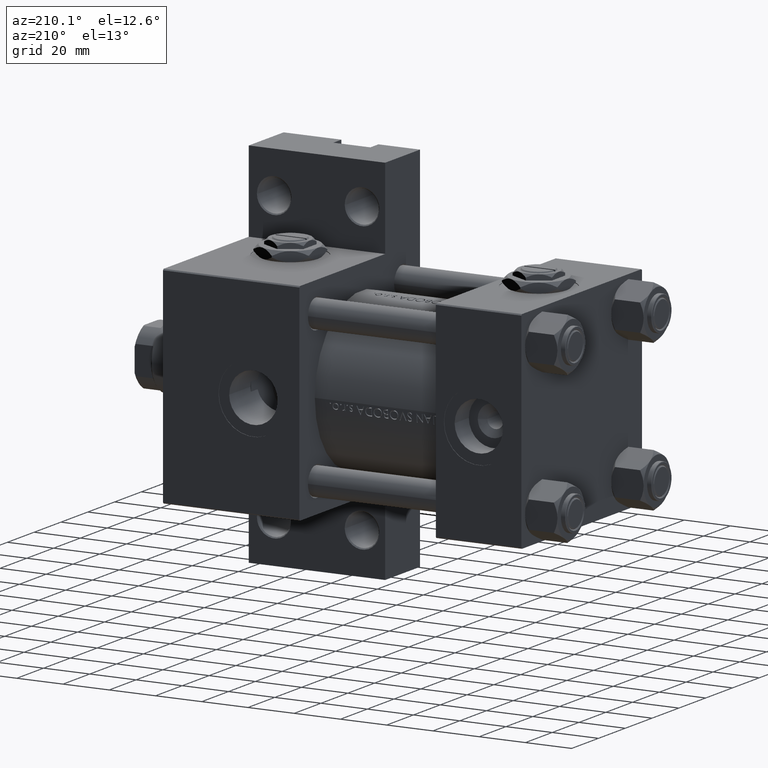
[diagram: clean part render]
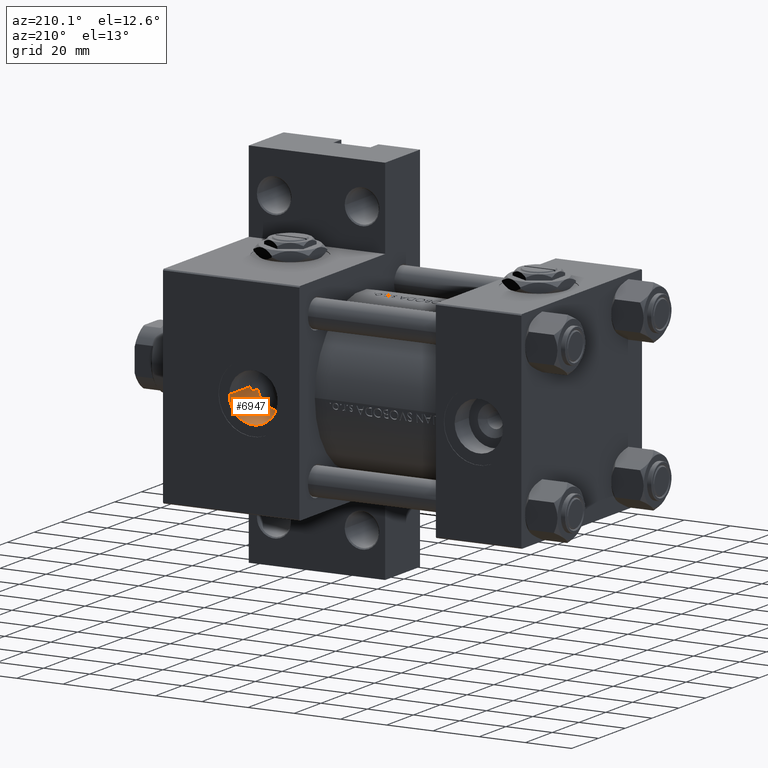
[diagram: same view with one face highlighted and labeled with its STEP entity id]
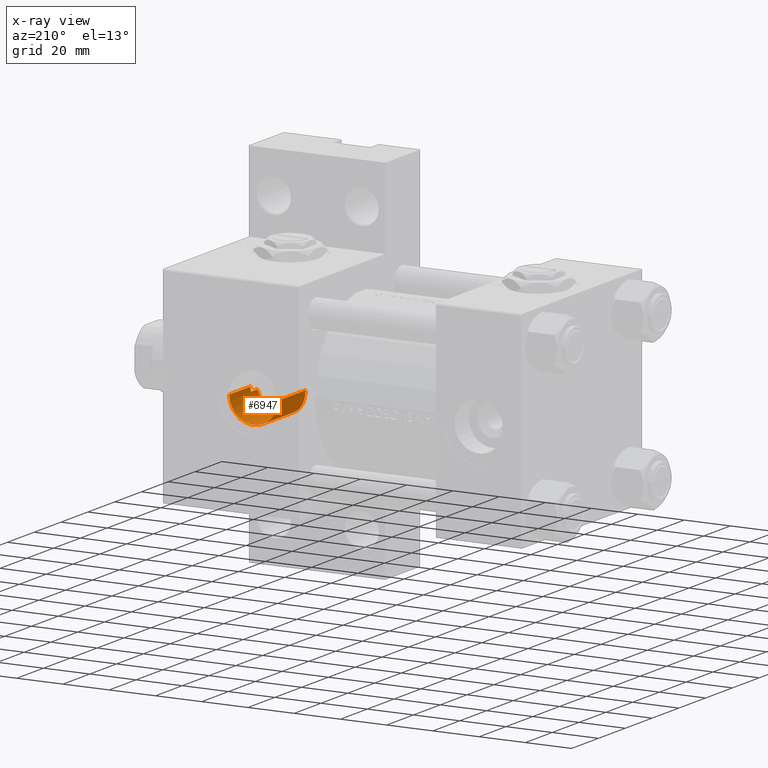
[diagram: x-ray of the same camera — body ghosted, the highlighted face saturated]
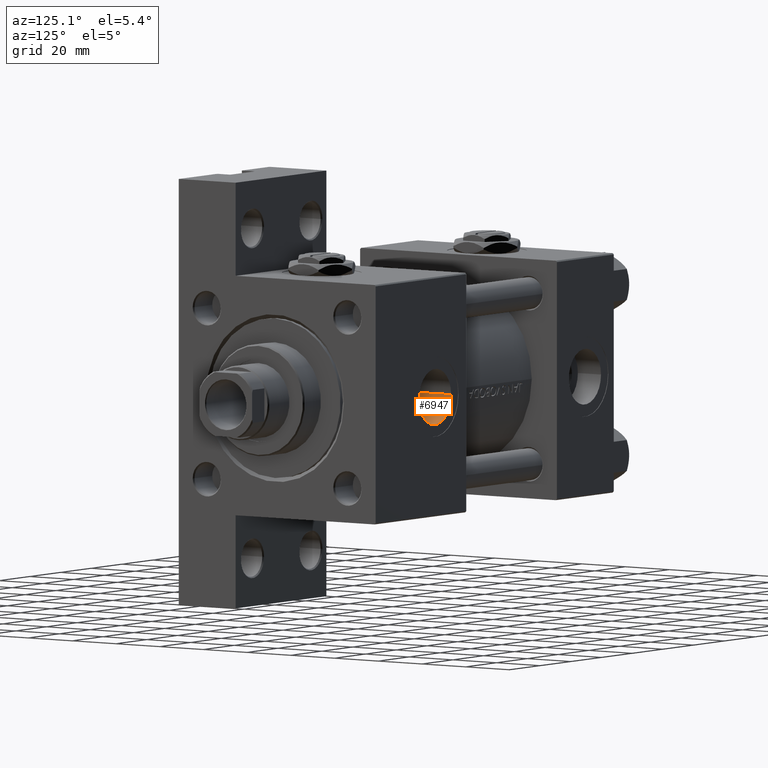
[diagram: same view with one face highlighted and labeled with its STEP entity id]
A machine part, auxiliary view. The second image highlights one B-rep face of the part: STEP entity #6947.
The next image is the same camera in x-ray: the body ghosted, the highlighted face saturated — about 0% of this face is hidden behind the body in this view.
A second angle (auxiliary view) of the same face is appended — the face is thin or edge-on in the first view.
In plain terms, the highlighted cylindrical surface (edge-blend (fillet) strip) has radius 10.48 mm, axis along (0, 1, 0).
Its self-contained STEP definition (entity closure, byte-faithful):
#535 = EDGE_LOOP ( 'NONE', ( #1357, #8630, #17877, #27736, #49111, #43908 ) ) ;
#1357 = ORIENTED_EDGE ( 'NONE', *, *, #39323, .F. ) ;
#1877 = CARTESIAN_POINT ( 'NONE',  ( 115.3546047890858830, 10.46516069043766706, 21.70421781554147955 ) ) ;
#2750 = CARTESIAN_POINT ( 'NONE',  ( 124.5605886890354128, 6.079608507556183206, 23.25599010009744205 ) ) ;
#3487 = CARTESIAN_POINT ( 'NONE',  ( 125.6486676934356410, 4.103318642504079961, 23.66282370660225709 ) ) ;
#3735 = CARTESIAN_POINT ( 'NONE',  ( 125.0706658558967348, 5.259006608444876996, 23.44220782432771344 ) ) ;
#3977 = CARTESIAN_POINT ( 'NONE',  ( 111.8833764951161385, 9.658986692485459713, 22.06079053540467783 ) ) ;
#4340 = CARTESIAN_POINT ( 'NONE',  ( 126.2999999999999972, 1.934011375354389939, 28.93759509379468398 ) ) ;
#5402 = CARTESIAN_POINT ( 'NONE',  ( 116.3365788557131282, 10.47972957537890615, 21.69747272524822179 ) ) ;
#5639 = CARTESIAN_POINT ( 'NONE',  ( 105.5814376118526923, 1.305463397218011412, 23.97406791321482089 ) ) ;
#6499 = EDGE_CURVE ( 'NONE', #42985, #9128, #26406, .T. ) ;
#6947 = ADVANCED_FACE ( 'NONE', ( #27909 ), #20364, .F. ) ;
#7760 = CIRCLE ( 'NONE', #35049, 10.48000000000000398 ) ;
#8630 = ORIENTED_EDGE ( 'NONE', *, *, #32320, .F. ) ;
#8645 = CARTESIAN_POINT ( 'NONE',  ( 106.1217545085731473, 3.515057092907707847, 23.75353681254874871 ) ) ;
#9071 = VECTOR ( 'NONE', #39358, 1000.000000000000000 ) ;
#9128 = VERTEX_POINT ( 'NONE', #4340 ) ;
#9887 = VERTEX_POINT ( 'NONE', #46737 ) ;
#10098 = CARTESIAN_POINT ( 'NONE',  ( 126.4800000000000040, 3.352779466116923030E-15, 28.99999999999999645 ) ) ;
#11239 = CARTESIAN_POINT ( 'NONE',  ( 125.9991245639265571, 3.203491301090188426, 23.80133124941671596 ) ) ;
#11529 = VERTEX_POINT ( 'NONE', #37274 ) ;
#11749 = CARTESIAN_POINT ( 'NONE',  ( 120.1231419626887202, 9.640330340006586951, 22.06687293500594649 ) ) ;
#12662 = CARTESIAN_POINT ( 'NONE',  ( 110.7417737867749139, 9.071127878233115283, 22.29694815791200213 ) ) ;
#13161 = CARTESIAN_POINT ( 'NONE',  ( 116.6678097429676200, 10.46380816682963300, 21.70484267188756888 ) ) ;
#13405 = CARTESIAN_POINT ( 'NONE',  ( 111.0221739552387561, 9.227930489537724768, 22.23508811885841396 ) ) ;
#14272 = CARTESIAN_POINT ( 'NONE',  ( 121.2804615657551750, 9.075224083592468460, 22.29671858359551706 ) ) ;
#14657 = EDGE_CURVE ( 'NONE', #9887, #11529, #7760, .T. ) ;
#15522 = CARTESIAN_POINT ( 'NONE',  ( 114.3833313512579792, 10.37495424086225171, 21.74565242126386266 ) ) ;
#15835 = DIRECTION ( 'NONE',  ( -0.000000000000000000, -0.000000000000000000, 1.000000000000000000 ) ) ;
#16681 = CARTESIAN_POINT ( 'NONE',  ( 115.6804775589005061, 10.48026348470391511, 21.69722620448674988 ) ) ;
#16936 = CARTESIAN_POINT ( 'NONE',  ( 105.8365460779989462, 2.576987839526246216, 23.86882874518433795 ) ) ;
#17022 = CARTESIAN_POINT ( 'NONE',  ( 126.2999999999999972, 1.934011375354389717, -29.64191626734007201 ) ) ;
#17103 = DIRECTION ( 'NONE',  ( 0.000000000000000000, 0.000000000000000000, 1.000000000000000000 ) ) ;
#17184 = CARTESIAN_POINT ( 'NONE',  ( 107.8404148361185548, 6.584472189995012492, 23.11877139329476805 ) ) ;
#17328 = CARTESIAN_POINT ( 'NONE',  ( 105.5199999999999960, 3.061465059477180590E-15, 24.00000000000000000 ) ) ;
#17592 = DIRECTION ( 'NONE',  ( 1.000000000000000000, 0.000000000000000000, 0.000000000000000000 ) ) ;
#17877 = ORIENTED_EDGE ( 'NONE', *, *, #26976, .T. ) ;
#18782 = CARTESIAN_POINT ( 'NONE',  ( 124.1756005286476068, 6.587575128527890733, 23.12146345890801413 ) ) ;
#20218 = CARTESIAN_POINT ( 'NONE',  ( 119.5171666001240709, 9.877540575260022493, 21.96629679004113100 ) ) ;
#20364 = CYLINDRICAL_SURFACE ( 'NONE', #30257, 10.48000000000000398 ) ;
#20465 = CARTESIAN_POINT ( 'NONE',  ( 106.4757274622522516, 4.420234614575353937, 23.61370289774655618 ) ) ;
#20710 = CARTESIAN_POINT ( 'NONE',  ( 106.7634153578573688, 4.992475095957398246, 23.50275936296847945 ) ) ;
#20959 = CARTESIAN_POINT ( 'NONE',  ( 119.2104795289410646, 9.981359381819737919, 21.92121289265049455 ) ) ;
#22027 = CARTESIAN_POINT ( 'NONE',  ( 126.4800000000000040, 0.6446704584514655334, 28.99999999999999645 ) ) ;
#22825 = CARTESIAN_POINT ( 'NONE',  ( 126.1785100649303644, 2.581032560009060006, 23.87487543305311988 ) ) ;
#23075 = CARTESIAN_POINT ( 'NONE',  ( 125.2296265764648240, 4.974786625258078132, 23.50179225389076265 ) ) ;
#24234 = B_SPLINE_CURVE_WITH_KNOTS ( 'NONE', 3,
 ( #45706, #22825, #11239, #3487, #33402, #23075, #3735, #2750, #18782, #48752, #26594, #38152, #14272, #28009, #11749, #20218, #20959, #34643, #36300, #13161, #5402, #16681, #1877, #15522, #39835, #35560, #3977, #13405, #12662, #46215, #27767, #43114, #43852, #28750, #17184, #28506, #43354, #20710, #20465, #8645, #40080, #16936, #32526, #5639, #47886, #35806 ),
 .UNSPECIFIED., .F., .F.,
 ( 4, 2, 2, 2, 2, 2, 2, 2, 2, 2, 2, 2, 2, 2, 2, 2, 2, 2, 2, 2, 2, 2, 4 ),
 ( 0.000000000000000000, 0.001950635593260296834, 0.002925953389890429204, 0.003901271186520562442, 0.005851906779780872286, 0.007802542373041183865, 0.009753177966301493709, 0.01072849576293163215, 0.01170381355956176886, 0.01365444915282200758, 0.01462976694945212520, 0.01560508474608224457, 0.01755572033934252318, 0.01950635593260279660, 0.02048167372923293678, 0.02145699152586307348, 0.02340762711912334690, 0.02438294491575348708, 0.02535826271238362378, 0.02730889830564391454, 0.02828421610227405819, 0.02925953389890420184, 0.03121016949216449260 ),
 .UNSPECIFIED. ) ;
#24918 = VECTOR ( 'NONE', #39916, 1000.000000000000000 ) ;
#25903 = CARTESIAN_POINT ( 'NONE',  ( 105.5199999999999960, -5.655464058400802100E-15, -29.64191626734007201 ) ) ;
#26406 = B_SPLINE_CURVE_WITH_KNOTS ( 'NONE', 3,
 ( #40645, #22027, #48937, #41623 ),
 .UNSPECIFIED., .F., .F.,
 ( 4, 4 ),
 ( 0.001934011375354407081, 0.003868022750708794213 ),
 .UNSPECIFIED. ) ;
#26594 = CARTESIAN_POINT ( 'NONE',  ( 122.8384446673738069, 7.967029318769875523, 22.70007944887656492 ) ) ;
#26976 = EDGE_CURVE ( 'NONE', #45640, #9128, #47472, .T. ) ;
#27736 = ORIENTED_EDGE ( 'NONE', *, *, #6499, .F. ) ;
#27767 = CARTESIAN_POINT ( 'NONE',  ( 109.9278629608511295, 8.547622686286423743, 22.49425722221100798 ) ) ;
#27909 = FACE_OUTER_BOUND ( 'NONE', #535, .T. ) ;
#28009 = CARTESIAN_POINT ( 'NONE',  ( 120.4196187691514268, 9.507918361243580918, 22.12193083781265557 ) ) ;
#28506 = CARTESIAN_POINT ( 'NONE',  ( 107.4515334306830994, 6.071064435560079353, 23.25309432138730870 ) ) ;
#28750 = CARTESIAN_POINT ( 'NONE',  ( 108.0468296896719096, 6.832241012558617932, 23.04955172625635385 ) ) ;
#30257 = AXIS2_PLACEMENT_3D ( 'NONE', #47031, #15835, #43007 ) ;
#32320 = EDGE_CURVE ( 'NONE', #45640, #36361, #24234, .T. ) ;
#32526 = CARTESIAN_POINT ( 'NONE',  ( 105.7616823727591679, 2.261044314697993052, 23.89959345673755209 ) ) ;
#33402 = CARTESIAN_POINT ( 'NONE',  ( 125.5181834494523088, 4.397578030052887499, 23.61194086392343294 ) ) ;
#34378 = EDGE_CURVE ( 'NONE', #42985, #9887, #42888, .T. ) ;
#34643 = CARTESIAN_POINT ( 'NONE',  ( 118.2793881261891613, 10.24949000825644241, 21.80320365404043059 ) ) ;
#35049 = AXIS2_PLACEMENT_3D ( 'NONE', #43764, #17103, #17592 ) ;
#35560 = CARTESIAN_POINT ( 'NONE',  ( 112.4839847618188458, 9.894292633687726379, 21.95956932049218935 ) ) ;
#35806 = CARTESIAN_POINT ( 'NONE',  ( 105.5199999999999960, 3.061465059477180590E-15, 24.00000000000000000 ) ) ;
#36300 = CARTESIAN_POINT ( 'NONE',  ( 117.6440388710335583, 10.37086982902510712, 21.74752090709943175 ) ) ;
#36361 = VERTEX_POINT ( 'NONE', #17328 ) ;
#37274 = CARTESIAN_POINT ( 'NONE',  ( 105.5199999999999960, -5.655464058400802100E-15, 44.79999999999999005 ) ) ;
#37457 = LINE ( 'NONE', #25903, #42560 ) ;
#38152 = CARTESIAN_POINT ( 'NONE',  ( 121.8209243987476924, 8.738118835249181870, 22.42674969495905657 ) ) ;
#39323 = EDGE_CURVE ( 'NONE', #36361, #11529, #37457, .T. ) ;
#39358 = DIRECTION ( 'NONE',  ( -0.000000000000000000, -0.000000000000000000, 1.000000000000000000 ) ) ;
#39835 = CARTESIAN_POINT ( 'NONE',  ( 113.7432686579793142, 10.25507452562442268, 21.80070824727649637 ) ) ;
#39916 = DIRECTION ( 'NONE',  ( -0.000000000000000000, -0.000000000000000000, 1.000000000000000000 ) ) ;
#40080 = CARTESIAN_POINT ( 'NONE',  ( 106.0163520438033231, 3.203659694230075239, 23.79588824877905395 ) ) ;
#40645 = CARTESIAN_POINT ( 'NONE',  ( 126.4800000000000040, 3.352779466116923030E-15, 28.99999999999999645 ) ) ;
#40784 = CARTESIAN_POINT ( 'NONE',  ( 126.2999999999999972, 1.934011375354389939, 23.92507973909010133 ) ) ;
#41623 = CARTESIAN_POINT ( 'NONE',  ( 126.2999999999999972, 1.934011375354389939, 28.93759509379468398 ) ) ;
#42560 = VECTOR ( 'NONE', #49044, 1000.000000000000000 ) ;
#42888 = LINE ( 'NONE', #47158, #9071 ) ;
#42985 = VERTEX_POINT ( 'NONE', #10098 ) ;
#43007 = DIRECTION ( 'NONE',  ( 1.000000000000000000, 0.000000000000000000, 0.000000000000000000 ) ) ;
#43114 = CARTESIAN_POINT ( 'NONE',  ( 109.1629303359419936, 7.968317617044771595, 22.69965861349108849 ) ) ;
#43354 = CARTESIAN_POINT ( 'NONE',  ( 107.2700483939780725, 5.806941605985021404, 23.31783162990696923 ) ) ;
#43764 = CARTESIAN_POINT ( 'NONE',  ( 116.0000000000000000, -6.938893903907227589E-15, 44.79999999999999005 ) ) ;
#43852 = CARTESIAN_POINT ( 'NONE',  ( 108.6931338099205959, 7.539777678112573156, 22.84100615567446368 ) ) ;
#43908 = ORIENTED_EDGE ( 'NONE', *, *, #14657, .T. ) ;
#45640 = VERTEX_POINT ( 'NONE', #40784 ) ;
#45706 = CARTESIAN_POINT ( 'NONE',  ( 126.2999999999999972, 1.934011375354389939, 23.92507973909010133 ) ) ;
#46215 = CARTESIAN_POINT ( 'NONE',  ( 110.1942257187215546, 8.730824066922334481, 22.42660593359924448 ) ) ;
#46737 = CARTESIAN_POINT ( 'NONE',  ( 126.4800000000000040, -6.938893903907227589E-15, 44.79999999999999005 ) ) ;
#47031 = CARTESIAN_POINT ( 'NONE',  ( 116.0000000000000000, -6.938893903907227589E-15, -29.64191626734007201 ) ) ;
#47158 = CARTESIAN_POINT ( 'NONE',  ( 126.4800000000000040, -6.938893903907227589E-15, -29.64191626734007201 ) ) ;
#47472 = LINE ( 'NONE', #17022, #24918 ) ;
#47886 = CARTESIAN_POINT ( 'NONE',  ( 105.5199999999999960, 0.6581386959017265781, 24.00000000000000711 ) ) ;
#48752 = CARTESIAN_POINT ( 'NONE',  ( 123.3170701525836677, 7.529745975807641045, 22.84416219986020380 ) ) ;
#48937 = CARTESIAN_POINT ( 'NONE',  ( 126.4210485436893237, 1.289340916902928624, 28.97924172559974210 ) ) ;
#49044 = DIRECTION ( 'NONE',  ( -0.000000000000000000, -0.000000000000000000, 1.000000000000000000 ) ) ;
#49111 = ORIENTED_EDGE ( 'NONE', *, *, #34378, .T. ) ;